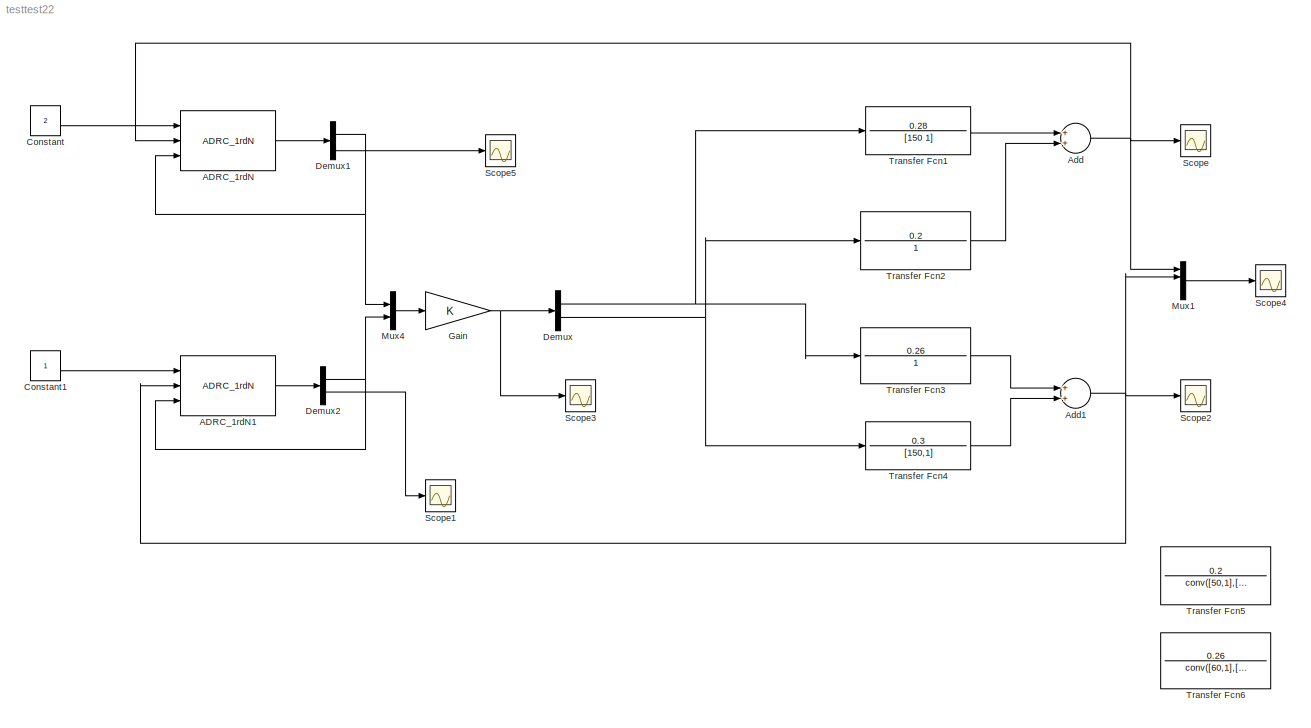
MODEL testtest22
KIND model
BLOCK [Reference] ADRC_1rdN  REF=ADRC/ADRC/ADRC_1rd/ADRC_1rdN
  B01 = 20
  B02 = 80
  FunctionWithSeparateData = off
  GeneratePreprocessorConditionals = off
  Ports = [3, 1]
  RT = 50
  RTWMemSecDataConstants = Inherit from model
  RTWMemSecDataInternal = Inherit from model
  RTWMemSecDataParameters = Inherit from model
  RTWMemSecFuncExecute = Inherit from model
  RTWMemSecFuncInitTerm = Inherit from model
  SID = 57
  ShowPortLabels = FromPortIcon
  SourceBlock = ADRC/ADRC/ADRC_1rd/ADRC_1rdN
  SystemSampleTime = -1
  h = 0.05
  r = 1
BLOCK [Reference] ADRC_1rdN1  REF=ADRC/ADRC/ADRC_1rd/ADRC_1rdN
  B01 = 20
  B02 = 80
  FunctionWithSeparateData = off
  GeneratePreprocessorConditionals = off
  Ports = [3, 1]
  RT = 400
  RTWMemSecDataConstants = Inherit from model
  RTWMemSecDataInternal = Inherit from model
  RTWMemSecDataParameters = Inherit from model
  RTWMemSecFuncExecute = Inherit from model
  RTWMemSecFuncInitTerm = Inherit from model
  SID = 34
  ShowPortLabels = FromPortIcon
  SourceBlock = ADRC/ADRC/ADRC_1rd/ADRC_1rdN
  SystemSampleTime = -1
  h = 0.05
  r = 1
BLOCK [Sum] Add
  InputSameDT = off
  OutDataTypeStr = Inherit: Inherit via internal rule
  Ports = [2, 1]
  SID = 58
  SaturateOnIntegerOverflow = off
BLOCK [Sum] Add1
  InputSameDT = off
  OutDataTypeStr = Inherit: Inherit via internal rule
  Ports = [2, 1]
  SID = 30
  SaturateOnIntegerOverflow = off
BLOCK [Constant] Constant
  SID = 59
  Value = 2
BLOCK [Constant] Constant1
  SID = 31
BLOCK [Demux] Demux
  DisplayOption = bar
  Outputs = 2
  Ports = [1, 2]
  SID = 60
BLOCK [Demux] Demux1
  DisplayOption = bar
  Outputs = 2
  Ports = [1, 2]
  SID = 61
BLOCK [Demux] Demux2
  DisplayOption = bar
  Outputs = 2
  Ports = [1, 2]
  SID = 36
BLOCK [Gain] Gain
  Gain = K
  Multiplication = Matrix(K*u)
  OutDataTypeStr = Inherit: Inherit via internal rule
  ParamDataTypeStr = Inherit: Inherit via internal rule
  SID = 62
  SaturateOnIntegerOverflow = off
BLOCK [Mux] Mux1
  DisplayOption = bar
  Ports = [4, 1]
  SID = 63
BLOCK [Mux] Mux4
  DisplayOption = bar
  Inputs = 2
  Ports = [2, 1]
  SID = 64
BLOCK [Scope] Scope
  DataFormat = Array
  Floating = off
  LimitDataPoints = off
  NumInputPorts = 1
  Ports = [1]
  SID = 65
  SampleTime = 0
  TimeRange = 1000
  YMax = 1.4e+236
  YMin = -2e+235
BLOCK [Scope] Scope1
  DataFormat = Array
  Floating = off
  LimitDataPoints = off
  NumInputPorts = 1
  Ports = [1]
  SID = 71
  SampleTime = 0
  SaveName = ScopeData4
  TimeRange = 1000
  YMax = 1.4e+236
  YMin = -2e+235
BLOCK [Scope] Scope2
  DataFormat = Array
  Floating = off
  LimitDataPoints = off
  NumInputPorts = 1
  Ports = [1]
  SID = 29
  SampleTime = 0
  SaveName = ScopeData2
  YMax = 10.25
  YMin = 5.25
BLOCK [Scope] Scope3
  DataFormat = Array
  Floating = off
  LimitDataPoints = off
  NumInputPorts = 1
  Ports = [1]
  SID = 53
  SampleTime = 0
  SaveName = ScopeData3
  TimeRange = 1000
  YMax = 1.4e+236
  YMin = -2e+235
BLOCK [Scope] Scope4
  DataFormat = Array
  Floating = off
  LimitDataPoints = off
  NumInputPorts = 1
  Ports = [1]
  SID = 66
  SampleTime = 0
  SaveName = ScopeData1
  TimeRange = 2000
  YMax = 6.75
  YMin = 1
BLOCK [Scope] Scope5
  DataFormat = Array
  Floating = off
  LimitDataPoints = off
  NumInputPorts = 1
  Ports = [1]
  SID = 73
  SampleTime = 0
  SaveName = ScopeData5
  TimeRange = 1000
  YMax = 1.4e+236
  YMin = -2e+235
BLOCK [TransferFcn] Transfer Fcn1
  Denominator = [150 1]
  Numerator = 0.28
  SID = 67
BLOCK [TransferFcn] Transfer Fcn2
  Denominator = 1
  Numerator = 0.2
  SID = 68
BLOCK [TransferFcn] Transfer Fcn3
  Denominator = 1
  Numerator = 0.26
  SID = 45
BLOCK [TransferFcn] Transfer Fcn4
  Denominator = [150,1]
  Numerator = 0.3
  SID = 46
BLOCK [TransferFcn] Transfer Fcn5
  Denominator = conv([50,1],[20,1])
  Numerator = 0.2
  SID = 69
BLOCK [TransferFcn] Transfer Fcn6
  Denominator = conv([60,1],[10,1])
  Numerator = 0.26
  SID = 70
LINE ADRC_1rdN1:1 -> Demux2:1
LINE ADRC_1rdN:1 -> Demux1:1
NET Add1:1 -> ADRC_1rdN1:2, Mux1:2, Scope2:1
NET Add:1 -> ADRC_1rdN:2, Mux1:1, Scope:1
LINE Constant1:1 -> ADRC_1rdN1:1
LINE Constant:1 -> ADRC_1rdN:1
NET Demux1:1 -> ADRC_1rdN:3, Mux4:1
LINE Demux1:2 -> Scope5:1
NET Demux2:1 -> ADRC_1rdN1:3, Mux4:2
LINE Demux2:2 -> Scope1:1
NET Demux:1 -> Transfer Fcn1:1, Transfer Fcn3:1
NET Demux:2 -> Transfer Fcn2:1, Transfer Fcn4:1
NET Gain:1 -> Demux:1, Scope3:1
LINE Mux1:1 -> Scope4:1
LINE Mux4:1 -> Gain:1
LINE Transfer Fcn1:1 -> Add:1
LINE Transfer Fcn2:1 -> Add:2
LINE Transfer Fcn3:1 -> Add1:1
LINE Transfer Fcn4:1 -> Add1:2
note: NET lines group one-source signal fan-out (src -> all destinations, sorted); 1:1 wires keep LINE
